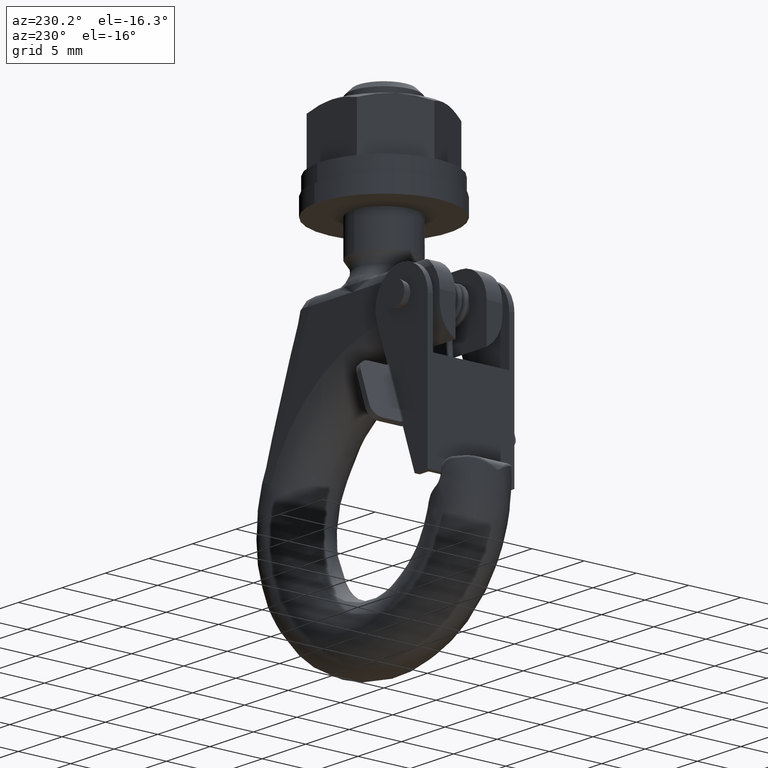
[diagram: clean part render]
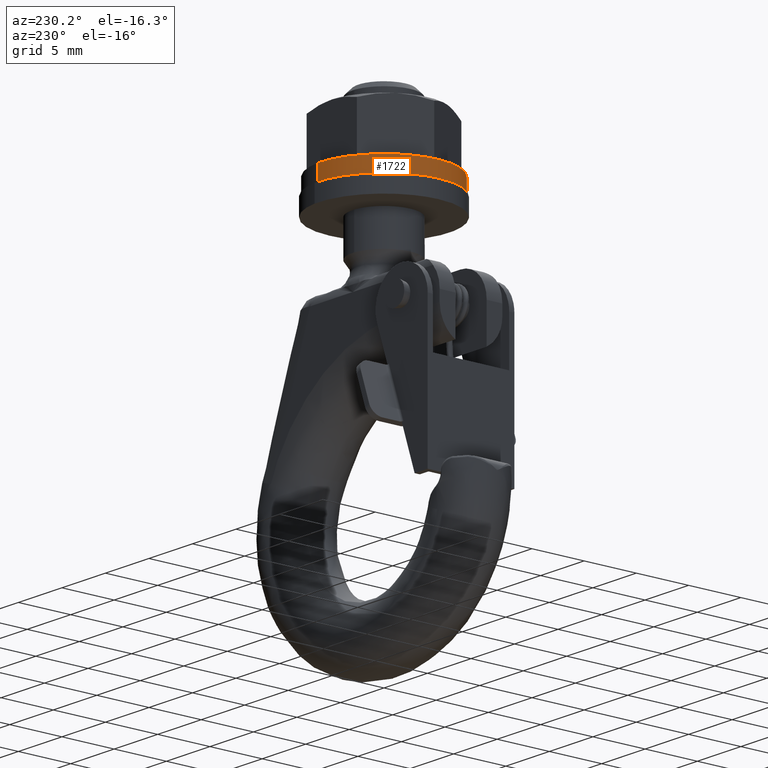
[diagram: same view with one face highlighted and labeled with its STEP entity id]
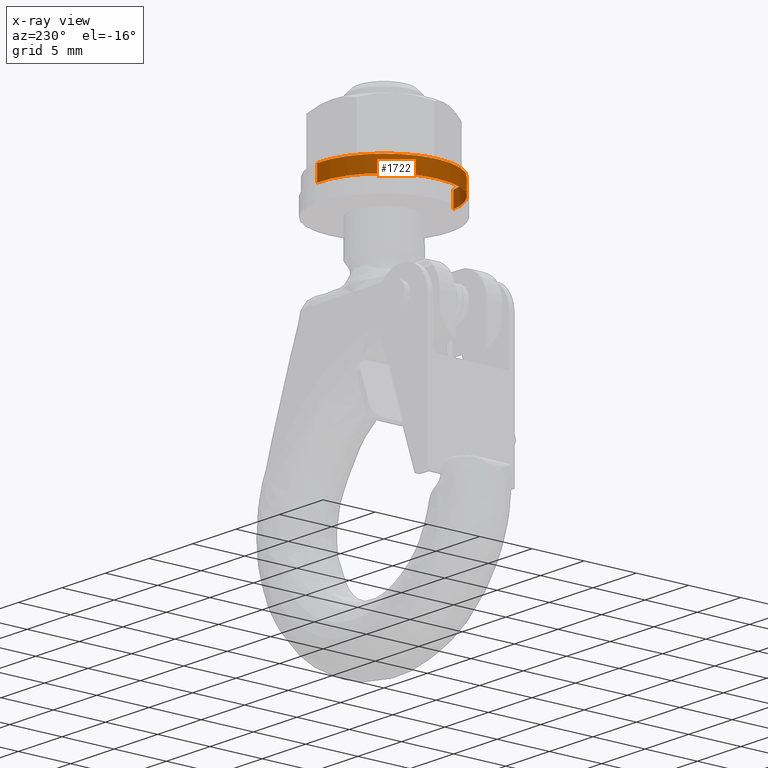
[diagram: x-ray of the same camera — body ghosted, the highlighted face saturated]
A machine part, auxiliary view. The second image highlights one B-rep face of the part: STEP entity #1722.
The next image is the same camera in x-ray: the body ghosted, the highlighted face saturated — about 4% of this face is hidden behind the body in this view.
In plain terms, the highlighted face is a freeform B-spline surface patch.
Its self-contained STEP definition (entity closure, byte-faithful):
#1559=CARTESIAN_POINT('',(-0.720008595362610,-6.057356124796357,25.382636969437449));
#1560=VERTEX_POINT('',#1559);
#1578=CARTESIAN_POINT('',(-0.720008595362610,-6.057356124796357,23.882636969437399));
#1579=VERTEX_POINT('',#1578);
#1580=CARTESIAN_POINT('',(-0.720008595362610,-6.057356124796357,23.882636969437399));
#1581=CARTESIAN_POINT('',(-0.720008595362610,-6.057356124796357,25.382636969437449));
#1582=QUASI_UNIFORM_CURVE('',1,(#1580,#1581),.UNSPECIFIED.,.F.,.U.);
#1583=EDGE_CURVE('',#1579,#1560,#1582,.T.);
#1602=CARTESIAN_POINT('',(0.372390598401944,6.088620602582893,23.882636969437399));
#1603=VERTEX_POINT('',#1602);
#1617=CARTESIAN_POINT('',(0.372390531412274,6.088620606680038,25.382636969437240));
#1618=VERTEX_POINT('',#1617);
#1619=CARTESIAN_POINT('',(0.372390598401944,6.088620602582893,23.882636969437399));
#1620=CARTESIAN_POINT('',(0.372390531412274,6.088620606680038,25.382636969437240));
#1621=QUASI_UNIFORM_CURVE('',1,(#1619,#1620),.UNSPECIFIED.,.F.,.U.);
#1622=EDGE_CURVE('',#1603,#1618,#1621,.T.);
#1640=CARTESIAN_POINT('',(0.372395969065549,6.088620274103790,23.845136969437391));
#1641=CARTESIAN_POINT('',(-5.716224305038241,6.461016243169339,23.845136969437387));
#1642=CARTESIAN_POINT('',(-6.088620274103790,0.372395969065549,23.845136969437391));
#1643=CARTESIAN_POINT('',(-6.440293688496023,-5.377413531033975,23.845136969437394));
#1644=CARTESIAN_POINT('',(-0.720008595337757,-6.057356124799312,23.845136969437394));
#1645=CARTESIAN_POINT('',(0.372395969065549,6.088620274103790,25.421074469437450));
#1646=CARTESIAN_POINT('',(-5.716224305038241,6.461016243169339,25.421074469437453));
#1647=CARTESIAN_POINT('',(-6.088620274103790,0.372395969065549,25.421074469437450));
#1648=CARTESIAN_POINT('',(-6.440293688496023,-5.377413531033975,25.421074469437450));
#1649=CARTESIAN_POINT('',(-0.720008595337757,-6.057356124799312,25.421074469437457));
#1657=(BOUNDED_SURFACE()B_SPLINE_SURFACE(2,1,((#1640,#1645),(#1641,#1646),(#1642,#1647),(#1643,#1648),(#1644,#1649)),.UNSPECIFIED.,.F.,.F.,.U.)B_SPLINE_SURFACE_WITH_KNOTS((3,2,3),(2,2),(0.0,10.106807608195020,19.809342912062231),(0.0,1.0),.UNSPECIFIED.)GEOMETRIC_REPRESENTATION_ITEM()RATIONAL_B_SPLINE_SURFACE(((1.0,1.0),(0.707106781186548,0.707106781186548),(1.0,1.0),(0.718822509939086,0.718822509939086),(0.977505800795127,0.977505800795127)))REPRESENTATION_ITEM('')SURFACE());
#1658=CARTESIAN_POINT('',(-6.099997999999999,0.0,25.382636969437449));
#1659=VERTEX_POINT('',#1658);
#1660=CARTESIAN_POINT('',(-6.099997999999999,0.0,25.382636969437449));
#1661=CARTESIAN_POINT('',(-6.099997999999998,-5.417862831909520,25.382636969437453));
#1662=CARTESIAN_POINT('',(-0.720008595362610,-6.057356124796357,25.382636969437446));
#1670=(BOUNDED_CURVE()B_SPLINE_CURVE(2,(#1660,#1661,#1662),.UNSPECIFIED.,.F.,.U.)B_SPLINE_CURVE_WITH_KNOTS((3,3),(0.0,0.229562473514257),.UNSPECIFIED.)CURVE()GEOMETRIC_REPRESENTATION_ITEM()RATIONAL_B_SPLINE_CURVE((1.0,0.731050832854525,0.956026754185168))REPRESENTATION_ITEM(''));
#1671=EDGE_CURVE('',#1659,#1560,#1670,.T.);
#1672=ORIENTED_EDGE('',*,*,#1671,.F.);
#1673=CARTESIAN_POINT('',(0.372390531412274,6.088620606680038,25.382636969437247));
#1674=CARTESIAN_POINT('',(0.186369068566089,6.099997999999999,25.382636969437453));
#1675=CARTESIAN_POINT('',(0.0,6.099997999999999,25.382636969437449));
#1676=CARTESIAN_POINT('',(-6.099997999999999,6.099997999999999,25.382636969437453));
#1677=CARTESIAN_POINT('',(-6.099997999999999,0.0,25.382636969437449));
#1685=(BOUNDED_CURVE()B_SPLINE_CURVE(2,(#1673,#1674,#1675,#1676,#1677),.UNSPECIFIED.,.F.,.U.)B_SPLINE_CURVE_WITH_KNOTS((3,2,3),(0.739333116340875,0.750000000000000,1.0),.UNSPECIFIED.)CURVE()GEOMETRIC_REPRESENTATION_ITEM()RATIONAL_B_SPLINE_CURVE((0.976072371936714,0.987502968441480,1.0,0.707106781186547,1.0))REPRESENTATION_ITEM(''));
#1686=EDGE_CURVE('',#1618,#1659,#1685,.T.);
#1687=ORIENTED_EDGE('',*,*,#1686,.F.);
#1688=ORIENTED_EDGE('',*,*,#1622,.F.);
#1689=CARTESIAN_POINT('',(-6.099997999999999,0.0,23.882636969437399));
#1690=VERTEX_POINT('',#1689);
#1691=CARTESIAN_POINT('',(0.372390598401944,6.088620602582893,23.882636969437399));
#1692=CARTESIAN_POINT('',(0.186369102154835,6.099997999999999,23.882636969437407));
#1693=CARTESIAN_POINT('',(0.0,6.099997999999999,23.882636969437399));
#1694=CARTESIAN_POINT('',(-6.099997999999999,6.099997999999999,23.882636969437396));
#1695=CARTESIAN_POINT('',(-6.099997999999999,0.0,23.882636969437399));
#1703=(BOUNDED_CURVE()B_SPLINE_CURVE(2,(#1691,#1692,#1693,#1694,#1695),.UNSPECIFIED.,.F.,.U.)B_SPLINE_CURVE_WITH_KNOTS((3,2,3),(0.739333114442439,0.750000000000000,1.0),.UNSPECIFIED.)CURVE()GEOMETRIC_REPRESENTATION_ITEM()RATIONAL_B_SPLINE_CURVE((0.976072367867999,0.987502966217324,1.0,0.707106781186547,1.0))REPRESENTATION_ITEM(''));
#1704=EDGE_CURVE('',#1603,#1690,#1703,.T.);
#1705=ORIENTED_EDGE('',*,*,#1704,.T.);
#1706=CARTESIAN_POINT('',(-6.099997999999999,0.0,23.882636969437399));
#1707=CARTESIAN_POINT('',(-6.099997999999998,-5.417862831909520,23.882636969437392));
#1708=CARTESIAN_POINT('',(-0.720008595362610,-6.057356124796357,23.882636969437403));
#1716=(BOUNDED_CURVE()B_SPLINE_CURVE(2,(#1706,#1707,#1708),.UNSPECIFIED.,.F.,.U.)B_SPLINE_CURVE_WITH_KNOTS((3,3),(0.0,0.229562473514257),.UNSPECIFIED.)CURVE()GEOMETRIC_REPRESENTATION_ITEM()RATIONAL_B_SPLINE_CURVE((1.0,0.731050832854525,0.956026754185168))REPRESENTATION_ITEM(''));
#1717=EDGE_CURVE('',#1690,#1579,#1716,.T.);
#1718=ORIENTED_EDGE('',*,*,#1717,.T.);
#1719=ORIENTED_EDGE('',*,*,#1583,.T.);
#1720=EDGE_LOOP('',(#1672,#1687,#1688,#1705,#1718,#1719));
#1721=FACE_OUTER_BOUND('',#1720,.T.);
#1722=ADVANCED_FACE('',(#1721),#1657,.T.);